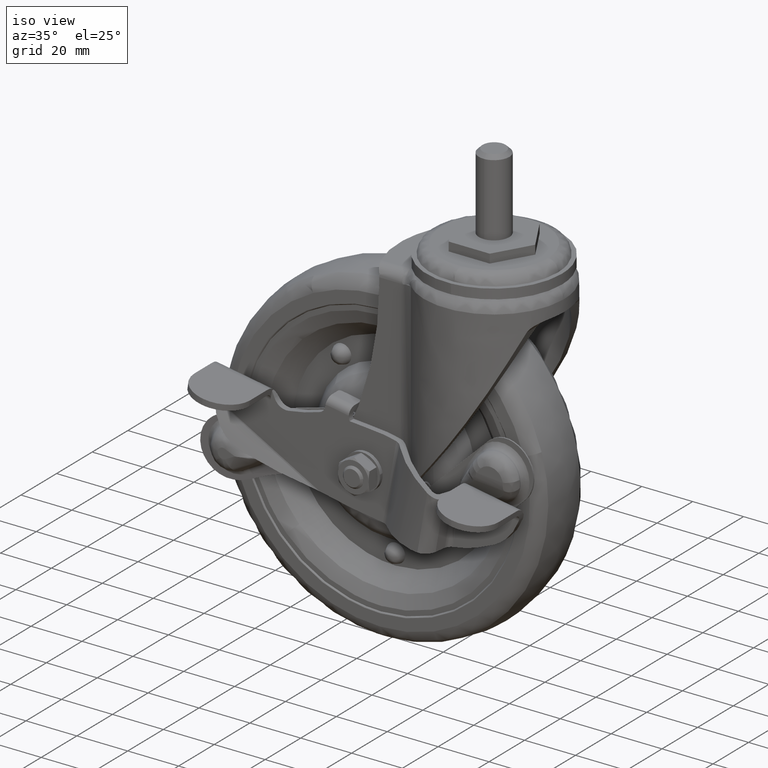
[diagram: clean part render]
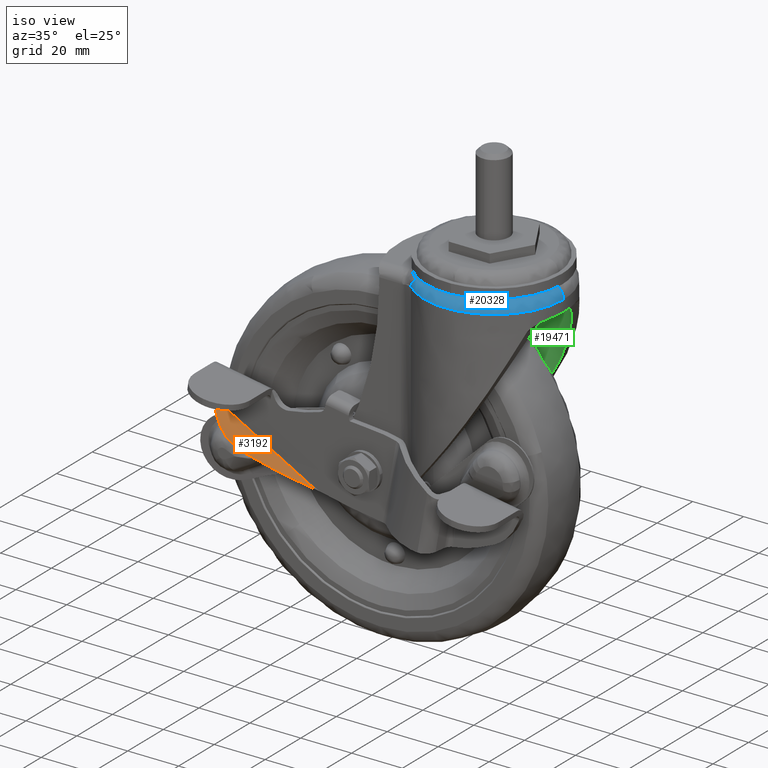
[diagram: same view with three faces highlighted in distinct colors, each labeled with its STEP entity id]
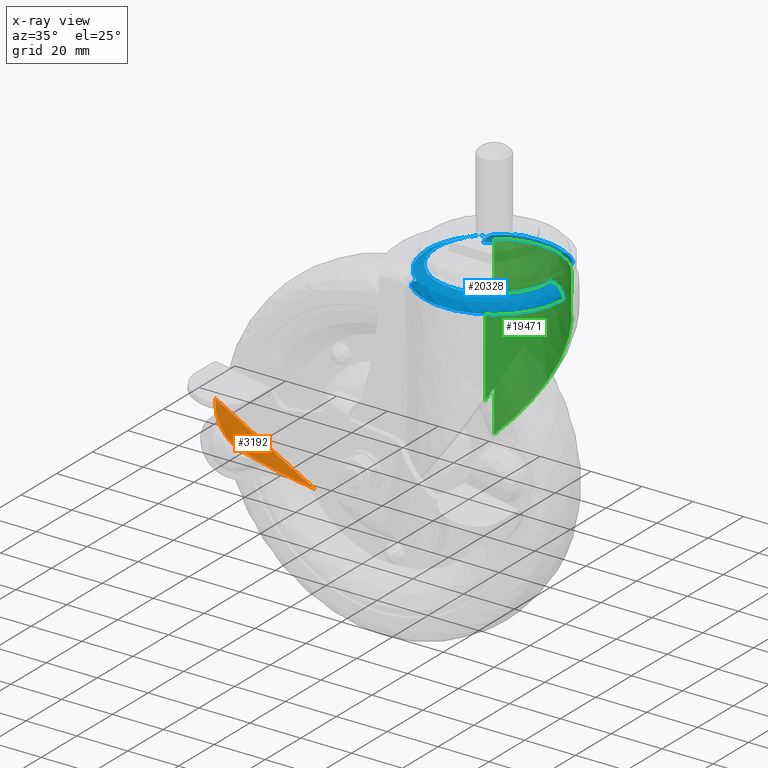
[diagram: x-ray of the same camera — body ghosted, the three highlighted faces saturated]
A machine part, iso view with three faces highlighted in distinct colors.
The next image is the same camera in x-ray (body ghosted, the three faces saturated) — at least one of them is partly hidden behind the body in this view.
Their STEP definitions:

[orange] entity #3192 — the highlighted face is a freeform B-spline surface patch.
#1250=CARTESIAN_POINT('',(-55.390257170647203,-21.287599056337900,-96.914940896990998));
#1251=VERTEX_POINT('',#1250);
#1276=CARTESIAN_POINT('',(-94.785634736347106,-21.287599056338049,-75.102106616562295));
#1277=VERTEX_POINT('',#1276);
#1287=CARTESIAN_POINT('',(-55.390257170647203,-21.287599056337900,-96.914940896990998));
#1288=CARTESIAN_POINT('',(-74.976657489770787,-21.287599056370048,-85.807529654345686));
#1289=CARTESIAN_POINT('',(-94.785634736347106,-21.287599056338049,-75.102106616562295));
#1297=(BOUNDED_CURVE()B_SPLINE_CURVE(2,(#1287,#1288,#1289),.UNSPECIFIED.,.F.,.U.)CURVE()GEOMETRIC_REPRESENTATION_ITEM()QUASI_UNIFORM_CURVE()RATIONAL_B_SPLINE_CURVE((1.0,0.999947943834097,1.0))REPRESENTATION_ITEM(''));
#1298=EDGE_CURVE('',#1251,#1277,#1297,.T.);
#2579=CARTESIAN_POINT('',(-81.765373163265195,-24.486802558095000,-89.397686657626494));
#2580=VERTEX_POINT('',#2579);
#2581=CARTESIAN_POINT('',(-81.765373163265195,-24.486802558095000,-89.397686657626494));
#2582=CARTESIAN_POINT('',(-79.582958510828618,-24.306972020824361,-90.139152115354520));
#2583=CARTESIAN_POINT('',(-77.396079506504506,-24.108737278590390,-90.851547409920883));
#2584=CARTESIAN_POINT('',(-73.014203864726028,-23.671042005054311,-92.218711073236321));
#2585=CARTESIAN_POINT('',(-70.819206580186062,-23.431584815675912,-92.873478920368413));
#2586=CARTESIAN_POINT('',(-66.422021251219988,-22.906144585756969,-94.125819586545532));
#2587=CARTESIAN_POINT('',(-64.219832320773094,-22.620166438663659,-94.723391886438975));
#2588=CARTESIAN_POINT('',(-59.809330033453953,-21.995375363423030,-95.861708464142652));
#2589=CARTESIAN_POINT('',(-57.601015450556183,-21.656569489349309,-96.402452197317402));
#2590=CARTESIAN_POINT('',(-55.390257170647203,-21.287599056337900,-96.914940896990998));
#2591=B_SPLINE_CURVE_WITH_KNOTS('',3,(#2581,#2582,#2583,#2584,#2585,#2586,#2587,#2588,#2589,#2590),.UNSPECIFIED.,.F.,.U.,(4,2,2,2,4),(0.0,0.250000000000000,0.500000000000000,0.750000000000000,1.0),.UNSPECIFIED.);
#2592=EDGE_CURVE('',#2580,#1251,#2591,.T.);
#2798=CARTESIAN_POINT('',(-94.785634736347106,-21.287599056338049,-75.102106616562295));
#2799=CARTESIAN_POINT('',(-94.602717943949116,-21.623812770014450,-75.868794635654453));
#2800=CARTESIAN_POINT('',(-94.373360255989624,-21.933202948279540,-76.629939720594692));
#2801=CARTESIAN_POINT('',(-93.816974462597926,-22.502423264476722,-78.137888934616726));
#2802=CARTESIAN_POINT('',(-93.489995067832098,-22.762261393919321,-78.884706765426714));
#2803=CARTESIAN_POINT('',(-93.014803317256906,-23.057546969240072,-79.806819079539153));
#2804=CARTESIAN_POINT('',(-92.916429544868123,-23.115123739031489,-79.990668737558465));
#2805=CARTESIAN_POINT('',(-92.763722956540121,-23.199280469939481,-80.265529940500755));
#2806=CARTESIAN_POINT('',(-92.711983653772151,-23.226950982170351,-80.356956352022692));
#2807=CARTESIAN_POINT('',(-92.607225641633136,-23.281328084033358,-80.538715633973254));
#2808=CARTESIAN_POINT('',(-92.341865653499667,-23.415006284786060,-80.990858071196513));
#2809=CARTESIAN_POINT('',(-92.059260844607465,-23.537582176229101,-81.431734439363439));
#2810=CARTESIAN_POINT('',(-91.348093673822603,-23.811723195215329,-82.468065207988076));
#2811=CARTESIAN_POINT('',(-90.830221631088264,-23.967869938384361,-83.129999238585214));
#2812=CARTESIAN_POINT('',(-89.986348646955193,-24.165253329487012,-84.077605584641589));
#2813=CARTESIAN_POINT('',(-89.693849551953534,-24.224881425653528,-84.385906933091192));
#2814=CARTESIAN_POINT('',(-89.237803355999731,-24.305209475635358,-84.836586043528968));
#2815=CARTESIAN_POINT('',(-89.082902720339078,-24.330464693318969,-84.984848820521421));
#2816=CARTESIAN_POINT('',(-88.767219983133415,-24.377933625583371,-85.277357961947857));
#2817=CARTESIAN_POINT('',(-88.606104906427817,-24.400185426597300,-85.421883679578173));
#2818=CARTESIAN_POINT('',(-87.791415037919521,-24.503092551834559,-86.129168813230791));
#2819=CARTESIAN_POINT('',(-87.108654258982398,-24.559312649979301,-86.648240095291953));
#2820=CARTESIAN_POINT('',(-85.682721389900010,-24.623170519937599,-87.595161017178242));
#2821=CARTESIAN_POINT('',(-84.939549689503394,-24.630803455600660,-88.023011540265529));
#2822=CARTESIAN_POINT('',(-83.971900602396687,-24.609423026841359,-88.499400027764338));
#2823=CARTESIAN_POINT('',(-83.776428800273266,-24.603589742490179,-88.591745050953136));
#2824=CARTESIAN_POINT('',(-83.381545728735858,-24.588748943025241,-88.770486816507670));
#2825=CARTESIAN_POINT('',(-83.182128436213716,-24.579735845167018,-88.856872660402189));
#2826=CARTESIAN_POINT('',(-82.581070166846970,-24.548016188056071,-89.105704540889590));
#2827=CARTESIAN_POINT('',(-82.175595239671225,-24.520604776347220,-89.258315571883060));
#2828=CARTESIAN_POINT('',(-81.765373163265195,-24.486802558095000,-89.397686657626494));
#2829=B_SPLINE_CURVE_WITH_KNOTS('',3,(#2798,#2799,#2800,#2801,#2802,#2803,#2804,#2805,#2806,#2807,#2808,#2809,#2810,#2811,#2812,#2813,#2814,#2815,#2816,#2817,#2818,#2819,#2820,#2821,#2822,#2823,#2824,#2825,#2826,#2827,#2828),.UNSPECIFIED.,.F.,.U.,(4,2,2,2,2,1,2,2,2,2,2,2,2,2,2,4),(0.0,0.125000000000019,0.250000000000037,0.281250000000040,0.296875000000040,0.312500000000041,0.375000000000040,0.500000000000037,0.562500000000034,0.593750000000032,0.625000000000030,0.750000000000021,0.875000000000012,0.906250000000009,0.937500000000006,1.0),.UNSPECIFIED.);
#2830=EDGE_CURVE('',#1277,#2580,#2829,.T.);
#3170=CARTESIAN_POINT('',(-53.275715559173555,-21.102930857863885,-97.746694456337735));
#3171=CARTESIAN_POINT('',(-74.809580383534424,-21.102930857863885,-85.505853498402928));
#3172=CARTESIAN_POINT('',(-96.612753485181329,-21.102930857863885,-73.751400540867223));
#3173=CARTESIAN_POINT('',(-55.021064997887919,-23.148877515643218,-100.817081451292220));
#3174=CARTESIAN_POINT('',(-76.520469705397318,-23.148877515643214,-88.595829211556051));
#3175=CARTESIAN_POINT('',(-98.288751722747733,-23.148877515643211,-76.860186617405873));
#3176=CARTESIAN_POINT('',(-56.872095381197539,-24.770488470817956,-104.073380442264410));
#3177=CARTESIAN_POINT('',(-78.334953411067715,-24.770488470817966,-91.872903018018704));
#3178=CARTESIAN_POINT('',(-100.066231688246210,-24.770488470817966,-80.157209755145985));
#3186=(BOUNDED_SURFACE()B_SPLINE_SURFACE(2,2,((#3170,#3173,#3176),(#3171,#3174,#3177),(#3172,#3175,#3178)),.UNSPECIFIED.,.F.,.F.,.U.)B_SPLINE_SURFACE_WITH_KNOTS((3,3),(3,3),(11.256480624771120,60.830265591049198),(1.852013262391090,10.008276788115500),.UNSPECIFIED.)GEOMETRIC_REPRESENTATION_ITEM()RATIONAL_B_SPLINE_SURFACE(((0.942678607023300,0.941029256464514,0.942576581727601),(0.942636516665965,0.940987239750258,0.942534495925669),(0.942713161374647,0.941063750358099,0.942611132339159)))REPRESENTATION_ITEM('')SURFACE());
#3187=ORIENTED_EDGE('',*,*,#2592,.T.);
#3188=ORIENTED_EDGE('',*,*,#1298,.T.);
#3189=ORIENTED_EDGE('',*,*,#2830,.T.);
#3190=EDGE_LOOP('',(#3187,#3188,#3189));
#3191=FACE_OUTER_BOUND('',#3190,.T.);
#3192=ADVANCED_FACE('',(#3191),#3186,.T.);

[blue] entity #20328 — the highlighted face is a freeform B-spline surface patch.
#20114=CARTESIAN_POINT('',(14.764703633214774,23.185943986384601,-15.662674566640387));
#20115=CARTESIAN_POINT('',(8.166838625271861,27.387434402795506,-15.662674566640399));
#20116=CARTESIAN_POINT('',(0.345414007824911,27.485726497213562,-15.662674566640398));
#20117=CARTESIAN_POINT('',(-27.140312489388652,27.831140505038476,-15.662674566640403));
#20118=CARTESIAN_POINT('',(-27.485726497213562,0.345414007824913,-15.662674566640398));
#20119=CARTESIAN_POINT('',(-27.831140505038476,-27.140312489388652,-15.662674566640403));
#20120=CARTESIAN_POINT('',(-0.345414007824914,-27.485726497213562,-15.662674566640398));
#20121=CARTESIAN_POINT('',(27.140312489388652,-27.831140505038476,-15.662674566640403));
#20122=CARTESIAN_POINT('',(27.485726497213562,-0.345414007824916,-15.662674566640398));
#20123=CARTESIAN_POINT('',(14.979444158363409,23.523164557239987,-9.927302613869617));
#20124=CARTESIAN_POINT('',(8.285618606147999,27.785762211617900,-9.927302613869623));
#20125=CARTESIAN_POINT('',(0.350437771747077,27.885483884068648,-9.927302613869623));
#20126=CARTESIAN_POINT('',(-27.535046112321574,28.235921655815719,-9.927302613869623));
#20127=CARTESIAN_POINT('',(-27.885483884068648,0.350437771747079,-9.927302613869623));
#20128=CARTESIAN_POINT('',(-28.235921655815719,-27.535046112321574,-9.927302613869623));
#20129=CARTESIAN_POINT('',(-0.350437771747081,-27.885483884068648,-9.927302613869623));
#20130=CARTESIAN_POINT('',(27.535046112321549,-28.235921655815719,-9.927302613869623));
#20131=CARTESIAN_POINT('',(27.885483884068648,-0.350437771747082,-9.927302613869623));
#20132=CARTESIAN_POINT('',(11.898776802135627,18.685398589388402,-10.327092213219437));
#20133=CARTESIAN_POINT('',(6.581601120835479,22.071351869799781,-10.327092213219437));
#20134=CARTESIAN_POINT('',(0.278366859609281,22.150564817241793,-10.327092213219437));
#20135=CARTESIAN_POINT('',(-21.872197957632505,22.428931676851072,-10.327092213219439));
#20136=CARTESIAN_POINT('',(-22.150564817241793,0.278366859609283,-10.327092213219437));
#20137=CARTESIAN_POINT('',(-22.428931676851072,-21.872197957632505,-10.327092213219439));
#20138=CARTESIAN_POINT('',(-0.278366859609284,-22.150564817241793,-10.327092213219437));
#20139=CARTESIAN_POINT('',(21.872197957632505,-22.428931676851072,-10.327092213219439));
#20140=CARTESIAN_POINT('',(22.150564817241793,-0.278366859609286,-10.327092213219437));
#20148=(BOUNDED_SURFACE()B_SPLINE_SURFACE(2,2,((#20114,#20123,#20132),(#20115,#20124,#20133),(#20116,#20125,#20134),(#20117,#20126,#20135),(#20118,#20127,#20136),(#20119,#20128,#20137),(#20120,#20129,#20138),(#20121,#20130,#20139),(#20122,#20131,#20140)),.UNSPECIFIED.,.F.,.F.,.U.)B_SPLINE_SURFACE_WITH_KNOTS((3,2,2,2,3),(3,3),(0.0,16.395633141974741,61.939071807729157,107.482510473483600,153.025949139238010),(0.0,9.111870290046086),.UNSPECIFIED.)GEOMETRIC_REPRESENTATION_ITEM()RATIONAL_B_SPLINE_SURFACE(((0.787596728976401,0.516840619236521,0.787596769444847),(0.814477415808364,0.534480396443050,0.814477457657998),(0.910479796843584,0.597479553545834,0.910479843626031),(0.643806438481448,0.422481843932570,0.643806471561634),(0.910479796843584,0.597479553545834,0.910479843626031),(0.643806438481448,0.422481843932570,0.643806471561634),(0.910479796843584,0.597479553545834,0.910479843626031),(0.643806438481448,0.422481843932570,0.643806471561634),(0.910479796843584,0.597479553545834,0.910479843626031)))REPRESENTATION_ITEM('')SURFACE());
#20149=CARTESIAN_POINT('',(-18.434040863337351,20.406766952381449,-15.314989000000050));
#20150=VERTEX_POINT('',#20149);
#20151=CARTESIAN_POINT('',(14.771208646367899,23.196150437636540,-15.314988998504401));
#20152=VERTEX_POINT('',#20151);
#20153=CARTESIAN_POINT('',(-18.434040863337380,20.406766952381449,-15.314989000000050));
#20154=CARTESIAN_POINT('',(-2.893525941386623,34.444977305693364,-15.314989000000054));
#20155=CARTESIAN_POINT('',(14.771208646367894,23.196150437636540,-15.314988998504401));
#20163=(BOUNDED_CURVE()B_SPLINE_CURVE(2,(#20153,#20154,#20155),.UNSPECIFIED.,.F.,.U.)B_SPLINE_CURVE_WITH_KNOTS((3,3),(0.0,0.279238944093415),.UNSPECIFIED.)CURVE()GEOMETRIC_REPRESENTATION_ITEM()RATIONAL_B_SPLINE_CURVE((1.0,0.764573170260862,0.923588376607426))REPRESENTATION_ITEM(''));
#20164=EDGE_CURVE('',#20150,#20152,#20163,.T.);
#20165=ORIENTED_EDGE('',*,*,#20164,.F.);
#20166=CARTESIAN_POINT('',(-15.407647695972900,21.359650559663649,-12.108980114701060));
#20167=VERTEX_POINT('',#20166);
#20168=CARTESIAN_POINT('',(-18.434040863337401,20.406766952381449,-15.314989000000050));
#20169=CARTESIAN_POINT('',(-18.434040863337412,20.406766952381449,-15.213879970501271));
#20170=CARTESIAN_POINT('',(-18.426934625406830,20.409061428186849,-15.113678538708889));
#20171=CARTESIAN_POINT('',(-18.406066564486771,20.415797377839660,-14.964680157344620));
#20172=CARTESIAN_POINT('',(-18.397406551753630,20.418592514131131,-14.915231647736309));
#20173=CARTESIAN_POINT('',(-18.376725563338219,20.425266424420350,-14.816763827396560));
#20174=CARTESIAN_POINT('',(-18.364694205452469,20.429148539876220,-14.767768189873671));
#20175=CARTESIAN_POINT('',(-18.297330263543280,20.450879777916128,-14.527243223120180));
#20176=CARTESIAN_POINT('',(-18.220083514779589,20.475787556039201,-14.346056817903539));
#20177=CARTESIAN_POINT('',(-18.076267339801969,20.522069221641910,-14.087707275284140));
#20178=CARTESIAN_POINT('',(-18.023394324672768,20.539071557185729,-14.003548480356820));
#20179=CARTESIAN_POINT('',(-17.910294433430110,20.575399216055200,-13.841218384913351));
#20180=CARTESIAN_POINT('',(-17.850055074331159,20.594728634441321,-13.762951218807750));
#20181=CARTESIAN_POINT('',(-17.660092035507361,20.655598668444021,-13.536356446649380));
#20182=CARTESIAN_POINT('',(-17.523696100044550,20.699196929815798,-13.398942111650721));
#20183=CARTESIAN_POINT('',(-17.236745449508842,20.790569321491070,-13.143843292941680));
#20184=CARTESIAN_POINT('',(-17.086129224748579,20.838363321702850,-13.026245218247810));
#20185=CARTESIAN_POINT('',(-16.773677213425788,20.937025768352900,-12.806588632209950));
#20186=CARTESIAN_POINT('',(-16.611817699237221,20.987901840225611,-12.704563437601610));
#20187=CARTESIAN_POINT('',(-16.362056064418649,21.065927867221038,-12.561102551049039));
#20188=CARTESIAN_POINT('',(-16.277547596426420,21.092250393160619,-12.514845075302830));
#20189=CARTESIAN_POINT('',(-16.107107670315791,21.145161441376569,-12.425637825233100));
#20190=CARTESIAN_POINT('',(-16.021169672233189,21.171752285150522,-12.382677029781849));
#20191=CARTESIAN_POINT('',(-15.761400159112140,21.251837496816790,-12.258231671629771));
#20192=CARTESIAN_POINT('',(-15.585621077401550,21.305642133604760,-12.181165336487160));
#20193=CARTESIAN_POINT('',(-15.407647695972900,21.359650559663649,-12.108980114701060));
#20194=B_SPLINE_CURVE_WITH_KNOTS('',3,(#20168,#20169,#20170,#20171,#20172,#20173,#20174,#20175,#20176,#20177,#20178,#20179,#20180,#20181,#20182,#20183,#20184,#20185,#20186,#20187,#20188,#20189,#20190,#20191,#20192,#20193),.UNSPECIFIED.,.F.,.U.,(4,2,2,2,2,2,2,2,2,2,2,2,4),(0.0,0.062499999999998,0.093749999999997,0.124999999999996,0.249999999999995,0.312499999999995,0.374999999999994,0.499999999999996,0.624999999999997,0.749999999999998,0.812499999999998,0.874999999999998,1.0),.UNSPECIFIED.);
#20195=EDGE_CURVE('',#20150,#20167,#20194,.T.);
#20196=ORIENTED_EDGE('',*,*,#20195,.T.);
#20197=CARTESIAN_POINT('',(-15.407647695972900,-21.359650559663649,-12.108980114701060));
#20198=VERTEX_POINT('',#20197);
#20199=CARTESIAN_POINT('',(-15.407647695972891,21.359650559663649,-12.108980114701060));
#20200=CARTESIAN_POINT('',(-26.336861611706105,13.475931809810028,-12.108980114701062));
#20201=CARTESIAN_POINT('',(-26.336861611706102,0.0,-12.108980114701060));
#20202=CARTESIAN_POINT('',(-26.336861611706105,-13.475931809810028,-12.108980114701062));
#20203=CARTESIAN_POINT('',(-15.407647695972900,-21.359650559663649,-12.108980114701060));
#20211=(BOUNDED_CURVE()B_SPLINE_CURVE(2,(#20199,#20200,#20201,#20202,#20203),.UNSPECIFIED.,.F.,.U.)B_SPLINE_CURVE_WITH_KNOTS((3,2,3),(0.0,0.500000000000000,1.0),.UNSPECIFIED.)CURVE()GEOMETRIC_REPRESENTATION_ITEM()RATIONAL_B_SPLINE_CURVE((1.0,0.890230914165942,1.0,0.890230914165942,1.0))REPRESENTATION_ITEM(''));
#20212=EDGE_CURVE('',#20167,#20198,#20211,.T.);
#20213=ORIENTED_EDGE('',*,*,#20212,.T.);
#20214=CARTESIAN_POINT('',(-18.434040863337351,-20.406766952381449,-15.314989000000050));
#20215=VERTEX_POINT('',#20214);
#20216=CARTESIAN_POINT('',(-15.407647695972900,-21.359650559663649,-12.108980114701041));
#20217=CARTESIAN_POINT('',(-15.585696180352070,-21.305619342600188,-12.181195797913990));
#20218=CARTESIAN_POINT('',(-15.761517532398321,-21.251801494581951,-12.258284502936590));
#20219=CARTESIAN_POINT('',(-16.107888164006209,-21.145017368104231,-12.424223848968159));
#20220=CARTESIAN_POINT('',(-16.278703426516191,-21.091967776606971,-12.513214369565050));
#20221=CARTESIAN_POINT('',(-16.612527042793829,-20.987679858184858,-12.704982058035149));
#20222=CARTESIAN_POINT('',(-16.775404292347801,-20.936483772081040,-12.807632832021270));
#20223=CARTESIAN_POINT('',(-17.012193646060670,-20.861708100649260,-12.974355556089479));
#20224=CARTESIAN_POINT('',(-17.090033074444221,-20.837067072144240,-13.032205455339490));
#20225=CARTESIAN_POINT('',(-17.241716128845582,-20.788950537442020,-13.151865167045370));
#20226=CARTESIAN_POINT('',(-17.315604889392610,-20.765461078851281,-13.213689684151900));
#20227=CARTESIAN_POINT('',(-17.530785139050732,-20.696933969796131,-13.405803935511861));
#20228=CARTESIAN_POINT('',(-17.665676113400639,-20.653810904807521,-13.542646489208520));
#20229=CARTESIAN_POINT('',(-17.851503884059952,-20.594263590354451,-13.764871248849390));
#20230=CARTESIAN_POINT('',(-17.910677595556841,-20.575276090846099,-13.841790888248640));
#20231=CARTESIAN_POINT('',(-17.994574713993231,-20.548328436102882,-13.962173040251811));
#20232=CARTESIAN_POINT('',(-18.021727587996320,-20.539602198891298,-14.003136529410639));
#20233=CARTESIAN_POINT('',(-18.074254567488961,-20.522713613389278,-14.086894095641140));
#20234=CARTESIAN_POINT('',(-18.099646974980381,-20.514545350721150,-14.129740469746960));
#20235=CARTESIAN_POINT('',(-18.220176825956809,-20.475757689078961,-14.346088775085621));
#20236=CARTESIAN_POINT('',(-18.297586748179050,-20.450797076979271,-14.527885795901369));
#20237=CARTESIAN_POINT('',(-18.364918524366331,-20.429076165819289,-14.768638163140711));
#20238=CARTESIAN_POINT('',(-18.376924050959438,-20.425202376039341,-14.817625250396370));
#20239=CARTESIAN_POINT('',(-18.397526562503291,-20.418553780616801,-14.915887984077751));
#20240=CARTESIAN_POINT('',(-18.406155788256889,-20.415768578902242,-14.965239747885059));
#20241=CARTESIAN_POINT('',(-18.426953042104099,-20.409055480722309,-15.113966076644660));
#20242=CARTESIAN_POINT('',(-18.434040863337351,-20.406766952381449,-15.214010338229629));
#20243=CARTESIAN_POINT('',(-18.434040863337351,-20.406766952381449,-15.314989000000050));
#20244=B_SPLINE_CURVE_WITH_KNOTS('',3,(#20216,#20217,#20218,#20219,#20220,#20221,#20222,#20223,#20224,#20225,#20226,#20227,#20228,#20229,#20230,#20231,#20232,#20233,#20234,#20235,#20236,#20237,#20238,#20239,#20240,#20241,#20242,#20243),.UNSPECIFIED.,.F.,.U.,(4,2,2,2,2,2,2,2,2,2,2,2,2,4),(0.0,0.124999999999999,0.249999999999998,0.374999999999997,0.437499999999997,0.499999999999997,0.624999999999995,0.687499999999995,0.718749999999996,0.749999999999997,0.874999999999998,0.906249999999999,0.937500000000000,1.0),.UNSPECIFIED.);
#20245=EDGE_CURVE('',#20198,#20215,#20244,.T.);
#20246=ORIENTED_EDGE('',*,*,#20245,.T.);
#20247=CARTESIAN_POINT('',(27.497828715604939,-0.345566096792196,-15.314988998566911));
#20248=VERTEX_POINT('',#20247);
#20249=CARTESIAN_POINT('',(27.497828715604946,-0.345566096792196,-15.314988998566911));
#20250=CARTESIAN_POINT('',(27.360622709721344,-11.263498392703902,-15.314989000000054));
#20251=CARTESIAN_POINT('',(19.771567708382339,-19.113741401223699,-15.314989000000050));
#20252=CARTESIAN_POINT('',(1.293765859722396,-38.227482802447369,-15.314989000000050));
#20253=CARTESIAN_POINT('',(-18.434040863337369,-20.406766952381449,-15.314989000000050));
#20261=(BOUNDED_CURVE()B_SPLINE_CURVE(2,(#20249,#20250,#20251,#20252,#20253),.UNSPECIFIED.,.F.,.U.)B_SPLINE_CURVE_WITH_KNOTS((3,2,3),(0.502589933616115,0.666666666666667,1.0),.UNSPECIFIED.)CURVE()GEOMETRIC_REPRESENTATION_ITEM()RATIONAL_B_SPLINE_CURVE((0.859516981167106,0.861666626689707,1.0,0.718966098486631,1.0))REPRESENTATION_ITEM(''));
#20262=EDGE_CURVE('',#20248,#20215,#20261,.T.);
#20263=ORIENTED_EDGE('',*,*,#20262,.F.);
#20264=CARTESIAN_POINT('',(22.498223500750949,-0.282735898134310,-10.314989000000070));
#20265=VERTEX_POINT('',#20264);
#20266=CARTESIAN_POINT('',(27.497828715604943,-0.345566096792196,-15.314988998566905));
#20267=CARTESIAN_POINT('',(27.497828712738876,-0.345566096756181,-10.314989012348333));
#20268=CARTESIAN_POINT('',(22.498223500750953,-0.282735898134310,-10.314989000000063));
#20276=(BOUNDED_CURVE()B_SPLINE_CURVE(2,(#20266,#20267,#20268),.UNSPECIFIED.,.F.,.U.)B_SPLINE_CURVE_WITH_KNOTS((3,3),(-1.725134642693941,-0.274865359250806),.UNSPECIFIED.)CURVE()GEOMETRIC_REPRESENTATION_ITEM()RATIONAL_B_SPLINE_CURVE((0.883342149443309,0.624617224684270,0.883342148749431))REPRESENTATION_ITEM(''));
#20277=EDGE_CURVE('',#20248,#20265,#20276,.T.);
#20278=ORIENTED_EDGE('',*,*,#20277,.T.);
#20279=CARTESIAN_POINT('',(-22.500000000000000,0.0,-10.314989000000081));
#20280=VERTEX_POINT('',#20279);
#20281=CARTESIAN_POINT('',(-22.500000000000000,0.0,-10.314989000000081));
#20282=CARTESIAN_POINT('',(-22.500000000000000,-22.500000000000000,-10.314989000000081));
#20283=CARTESIAN_POINT('',(0.0,-22.500000000000000,-10.314989000000081));
#20284=CARTESIAN_POINT('',(22.219018421568759,-22.499999999999989,-10.314989000000081));
#20285=CARTESIAN_POINT('',(22.498223500750957,-0.282735898134310,-10.314989000000063));
#20293=(BOUNDED_CURVE()B_SPLINE_CURVE(2,(#20281,#20282,#20283,#20284,#20285),.UNSPECIFIED.,.F.,.U.)B_SPLINE_CURVE_WITH_KNOTS((3,2,3),(0.500000000000000,0.750000000000000,0.997784295911077),.UNSPECIFIED.)CURVE()GEOMETRIC_REPRESENTATION_ITEM()RATIONAL_B_SPLINE_CURVE((1.0,0.707106781186548,1.0,0.709702639996719,0.994854295619497))REPRESENTATION_ITEM(''));
#20294=EDGE_CURVE('',#20280,#20265,#20293,.T.);
#20295=ORIENTED_EDGE('',*,*,#20294,.F.);
#20296=CARTESIAN_POINT('',(12.085534351397440,18.978668546290042,-10.314989000000070));
#20297=VERTEX_POINT('',#20296);
#20298=CARTESIAN_POINT('',(12.085534351397435,18.978668546290038,-10.314989000000066));
#20299=CARTESIAN_POINT('',(6.555767877592841,22.500000000000000,-10.314989000000081));
#20300=CARTESIAN_POINT('',(0.0,22.500000000000000,-10.314989000000081));
#20301=CARTESIAN_POINT('',(-22.500000000000000,22.500000000000000,-10.314989000000081));
#20302=CARTESIAN_POINT('',(-22.500000000000000,0.0,-10.314989000000081));
#20310=(BOUNDED_CURVE()B_SPLINE_CURVE(2,(#20298,#20299,#20300,#20301,#20302),.UNSPECIFIED.,.F.,.U.)B_SPLINE_CURVE_WITH_KNOTS((3,2,3),(0.158079749869238,0.250000000000000,0.500000000000000),.UNSPECIFIED.)CURVE()GEOMETRIC_REPRESENTATION_ITEM()RATIONAL_B_SPLINE_CURVE((0.863809525602246,0.892308728260254,1.0,0.707106781186548,1.0))REPRESENTATION_ITEM(''));
#20311=EDGE_CURVE('',#20297,#20280,#20310,.T.);
#20312=ORIENTED_EDGE('',*,*,#20311,.F.);
#20313=CARTESIAN_POINT('',(14.771208646367898,23.196150437636543,-15.314988998504409));
#20314=CARTESIAN_POINT('',(14.771208644763586,23.196150435111857,-10.314989015499901));
#20315=CARTESIAN_POINT('',(12.085534351397440,18.978668546290038,-10.314989000000065));
#20323=(BOUNDED_CURVE()B_SPLINE_CURVE(2,(#20313,#20314,#20315),.UNSPECIFIED.,.F.,.U.)B_SPLINE_CURVE_WITH_KNOTS((3,3),(-1.725134642668303,-0.274865359897190),.UNSPECIFIED.)CURVE()GEOMETRIC_REPRESENTATION_ITEM()RATIONAL_B_SPLINE_CURVE((0.764121703781564,0.540315639114919,0.764121702989749))REPRESENTATION_ITEM(''));
#20324=EDGE_CURVE('',#20152,#20297,#20323,.T.);
#20325=ORIENTED_EDGE('',*,*,#20324,.F.);
#20326=EDGE_LOOP('',(#20165,#20196,#20213,#20246,#20263,#20278,#20295,#20312,#20325));
#20327=FACE_OUTER_BOUND('',#20326,.T.);
#20328=ADVANCED_FACE('',(#20327),#20148,.T.);

[green] entity #19471 — the highlighted face is a freeform B-spline surface patch.
#19085=CARTESIAN_POINT('',(-14.263669605431460,20.409754834721220,-82.241723647606676));
#19086=VERTEX_POINT('',#19085);
#19096=CARTESIAN_POINT('',(-14.263683957683480,20.409735910961668,-12.914989000000110));
#19097=VERTEX_POINT('',#19096);
#19098=CARTESIAN_POINT('',(-14.263669605431460,20.409754834721220,-82.241723647606676));
#19099=CARTESIAN_POINT('',(-14.263683957683480,20.409735910961668,-12.914989000000110));
#19100=QUASI_UNIFORM_CURVE('',1,(#19098,#19099),.UNSPECIFIED.,.F.,.U.);
#19101=EDGE_CURVE('',#19086,#19097,#19100,.T.);
#19118=CARTESIAN_POINT('',(11.811690650548661,-21.920172535262079,-12.914989000000091));
#19119=VERTEX_POINT('',#19118);
#19135=CARTESIAN_POINT('',(11.811706921688909,-21.920185502390311,-47.213526866940413));
#19136=VERTEX_POINT('',#19135);
#19137=CARTESIAN_POINT('',(11.811706921688909,-21.920185502390311,-47.213526866940413));
#19138=CARTESIAN_POINT('',(11.811690650548661,-21.920172535262079,-12.914989000000091));
#19139=QUASI_UNIFORM_CURVE('',1,(#19137,#19138),.UNSPECIFIED.,.F.,.U.);
#19140=EDGE_CURVE('',#19136,#19119,#19139,.T.);
#19259=CARTESIAN_POINT('',(11.811698670678400,-21.920168213613088,-85.704592550639560));
#19260=CARTESIAN_POINT('',(33.731866884291499,-10.108469542934682,-85.704592550639560));
#19261=CARTESIAN_POINT('',(21.920168213613088,11.811698670678400,-85.704592550639560));
#19262=CARTESIAN_POINT('',(10.108469542934682,33.731866884291499,-85.704592550639560));
#19263=CARTESIAN_POINT('',(-11.811698670678400,21.920168213613088,-85.704592550639560));
#19264=CARTESIAN_POINT('',(-13.081441555655232,21.235966331564111,-85.704592550639546));
#19265=CARTESIAN_POINT('',(-14.263691176147619,20.409730866218883,-85.704592550639518));
#19266=CARTESIAN_POINT('',(11.811698670678400,-21.920168213613088,-11.075284191703521));
#19267=CARTESIAN_POINT('',(33.731866884291499,-10.108469542934682,-11.075284191703519));
#19268=CARTESIAN_POINT('',(21.920168213613088,11.811698670678400,-11.075284191703521));
#19269=CARTESIAN_POINT('',(10.108469542934682,33.731866884291499,-11.075284191703515));
#19270=CARTESIAN_POINT('',(-11.811698670678400,21.920168213613088,-11.075284191703521));
#19271=CARTESIAN_POINT('',(-13.081441555655232,21.235966331564111,-11.075284191703517));
#19272=CARTESIAN_POINT('',(-14.263691176147619,20.409730866218883,-11.075284191703512));
#19280=(BOUNDED_SURFACE()B_SPLINE_SURFACE(2,1,((#19259,#19266),(#19260,#19267),(#19261,#19268),(#19262,#19269),(#19263,#19270),(#19264,#19271),(#19265,#19272)),.UNSPECIFIED.,.F.,.F.,.U.)B_SPLINE_SURFACE_WITH_KNOTS((3,2,2,3),(2,2),(0.0,41.255670812360250,82.511341624720501,85.811792668146097),(0.0,74.629308358936058),.UNSPECIFIED.)GEOMETRIC_REPRESENTATION_ITEM()RATIONAL_B_SPLINE_SURFACE(((1.0,1.0),(0.707106781186548,0.707106781186548),(1.0,1.0),(0.707106781186548,0.707106781186548),(1.0,1.0),(0.976568561106622,0.976568561106622),(0.956886149458315,0.956886149458315)))REPRESENTATION_ITEM('')SURFACE());
#19281=CARTESIAN_POINT('',(23.210853167600149,9.014782040188461,-22.579567991240548));
#19282=VERTEX_POINT('',#19281);
#19283=CARTESIAN_POINT('',(-14.263669605431460,20.409754834721220,-82.241723647606676));
#19284=CARTESIAN_POINT('',(-13.812636991729869,20.724980448115250,-81.774108013115253));
#19285=CARTESIAN_POINT('',(-13.357370149563881,21.020890551577139,-81.296795277054841));
#19286=CARTESIAN_POINT('',(-12.562896577515939,21.502023814536258,-80.453901874801502));
#19287=CARTESIAN_POINT('',(-12.225329161267020,21.695616295167270,-80.092712116197575));
#19288=CARTESIAN_POINT('',(-11.716457734351479,21.972055805129671,-79.543403848337533));
#19289=CARTESIAN_POINT('',(-11.546413483894790,22.061876446784549,-79.359046823330203));
#19290=CARTESIAN_POINT('',(-11.205536290834459,22.236951071531649,-78.987834455059925));
#19291=CARTESIAN_POINT('',(-11.034548667617321,22.322276932395230,-78.800808093911456));
#19292=CARTESIAN_POINT('',(-10.180954796162830,22.736169000670881,-77.862968105482921));
#19293=CARTESIAN_POINT('',(-9.500689130649512,23.027595328445258,-77.102207238944672));
#19294=CARTESIAN_POINT('',(-8.146872997679486,23.540638074935650,-75.560468954659186));
#19295=CARTESIAN_POINT('',(-7.473318232106140,23.762222515113720,-74.779488406136664));
#19296=CARTESIAN_POINT('',(-6.134094414858248,24.142629208101528,-73.197815157355393));
#19297=CARTESIAN_POINT('',(-5.468422735839039,24.301432362567130,-72.397120637538251));
#19298=CARTESIAN_POINT('',(-4.145923650043986,24.561647910151539,-70.776348637061346));
#19299=CARTESIAN_POINT('',(-3.489094551442773,24.663048424186840,-69.956270072550311));
#19300=CARTESIAN_POINT('',(-2.185089567538443,24.812599691714158,-68.296925611394613));
#19301=CARTESIAN_POINT('',(-1.537912548347314,24.860742920027171,-67.457659079812530));
#19302=CARTESIAN_POINT('',(-0.735412303554984,24.889635857588701,-66.396638138504684));
#19303=CARTESIAN_POINT('',(-0.575344789054088,24.893842258127950,-66.183979913966297));
#19304=CARTESIAN_POINT('',(-0.256679615481284,24.899167025150359,-65.758565838162667));
#19305=CARTESIAN_POINT('',(0.219384332316039,24.902531491935260,-65.119940392627470));
#19306=CARTESIAN_POINT('',(0.689701442060677,24.892372715153162,-64.479781366905826));
#19307=CARTESIAN_POINT('',(1.622805243775848,24.854840785647468,-63.197371558957450));
#19308=CARTESIAN_POINT('',(2.234837637144973,24.806895194089599,-62.339640530471300));
#19309=CARTESIAN_POINT('',(3.439431234867084,24.668742857031049,-60.618404301262842));
#19310=CARTESIAN_POINT('',(4.031991629247115,24.578530165676408,-59.754899540908127));
#19311=CARTESIAN_POINT('',(5.781200909659074,24.248609092243619,-57.155533428460977));
#19312=CARTESIAN_POINT('',(6.909414279901126,23.949910561451411,-55.410796278883780));
#19313=CARTESIAN_POINT('',(9.092886231529068,23.209000631763999,-51.897277010665242));
#19314=CARTESIAN_POINT('',(10.148136607007521,22.766775723360251,-50.128491759619223));
#19315=CARTESIAN_POINT('',(11.422726722478560,22.127176106284040,-47.902744245274661));
#19316=CARTESIAN_POINT('',(11.675418741930750,21.994892223410051,-47.456858655455498));
#19317=CARTESIAN_POINT('',(12.051132078975110,21.789902691037138,-46.786938321080257));
#19318=CARTESIAN_POINT('',(12.175815714340180,21.720478573392970,-46.563449585333672));
#19319=CARTESIAN_POINT('',(12.424076743243500,21.579434808374820,-46.116110661407014));
#19320=CARTESIAN_POINT('',(12.547659946811221,21.507809964328040,-45.892248427539712));
#19321=CARTESIAN_POINT('',(13.161614927666060,21.144899361263619,-44.774240372897552));
#19322=CARTESIAN_POINT('',(13.641089699983381,20.838734851901780,-43.882236610766618));
#19323=CARTESIAN_POINT('',(14.577416085234340,20.194830753937151,-42.103339320513193));
#19324=CARTESIAN_POINT('',(15.034267507572091,19.857095019560230,-41.216443788666098));
#19325=CARTESIAN_POINT('',(15.925918982541390,19.149375416126190,-39.448364586664731));
#19326=CARTESIAN_POINT('',(16.360719414969559,18.779399056181020,-38.567177363804952));
#19327=CARTESIAN_POINT('',(17.208656197020328,18.005587290933001,-36.811496053328192));
#19328=CARTESIAN_POINT('',(17.621793751052561,17.601765381876451,-35.936995824286953));
#19329=CARTESIAN_POINT('',(18.426585035207889,16.757409610086341,-34.196189977876472));
#19330=CARTESIAN_POINT('',(18.818241394027780,16.316900160431960,-33.329873461792943));
#19331=CARTESIAN_POINT('',(19.579988905987960,15.394529134494849,-31.607702060001369));
#19332=CARTESIAN_POINT('',(19.950085531554269,14.912714028696589,-30.751826647588981));
#19333=CARTESIAN_POINT('',(20.668255960883211,13.900294941918270,-29.054017835023220));
#19334=CARTESIAN_POINT('',(21.016341755687780,13.369787566828220,-28.212042049903740));
#19335=CARTESIAN_POINT('',(21.521145300263541,12.528255316709931,-26.963717211496821));
#19336=CARTESIAN_POINT('',(21.686519836800279,12.240070787863580,-26.550068510706399));
#19337=CARTESIAN_POINT('',(21.930062978858668,11.794527996273620,-25.934073278279989));
#19338=CARTESIAN_POINT('',(22.010490265622661,11.643797649875580,-25.729490058312241));
#19339=CARTESIAN_POINT('',(22.169798034277719,11.337538194178761,-25.321984415560291));
#19340=CARTESIAN_POINT('',(22.248735753268129,11.181893116106760,-25.118913713501371));
#19341=CARTESIAN_POINT('',(22.482762646791969,10.707918447430201,-24.513502439207599));
#19342=CARTESIAN_POINT('',(22.634636027188460,10.383482645511270,-24.116075611979792));
#19343=CARTESIAN_POINT('',(22.929557074516140,9.714880025283893,-23.335966963477730));
#19344=CARTESIAN_POINT('',(23.072608405328371,9.370727848304110,-22.953273121586442));
#19345=CARTESIAN_POINT('',(23.210853167600149,9.014782040188461,-22.579567991240548));
#19346=B_SPLINE_CURVE_WITH_KNOTS('',3,(#19283,#19284,#19285,#19286,#19287,#19288,#19289,#19290,#19291,#19292,#19293,#19294,#19295,#19296,#19297,#19298,#19299,#19300,#19301,#19302,#19303,#19304,#19305,#19306,#19307,#19308,#19309,#19310,#19311,#19312,#19313,#19314,#19315,#19316,#19317,#19318,#19319,#19320,#19321,#19322,#19323,#19324,#19325,#19326,#19327,#19328,#19329,#19330,#19331,#19332,#19333,#19334,#19335,#19336,#19337,#19338,#19339,#19340,#19341,#19342,#19343,#19344,#19345),.UNSPECIFIED.,.F.,.U.,(4,2,2,2,2,2,2,2,2,2,2,1,2,2,2,2,2,2,2,2,2,2,2,2,2,2,2,2,2,2,2,4),(0.629946159326117,0.640625000000003,0.648437500000003,0.652343750000003,0.656250000000003,0.671875000000003,0.687500000000004,0.703125000000004,0.718750000000004,0.734375000000004,0.738281250000005,0.742187500000005,0.750000000000005,0.765625000000004,0.781250000000004,0.812500000000004,0.843750000000003,0.851562500000003,0.855468750000003,0.859375000000003,0.875000000000003,0.890625000000002,0.906250000000002,0.921875000000002,0.937500000000001,0.953125000000001,0.968750000000001,0.976562500000000,0.980468750000000,0.984375000000000,0.992187500000000,1.0),.UNSPECIFIED.);
#19347=EDGE_CURVE('',#19086,#19282,#19346,.T.);
#19348=ORIENTED_EDGE('',*,*,#19347,.T.);
#19349=CARTESIAN_POINT('',(23.210853167600149,-9.014782040188461,-22.579567991240548));
#19350=VERTEX_POINT('',#19349);
#19351=CARTESIAN_POINT('',(23.210853167600149,-9.014782040188461,-22.579567991240548));
#19352=CARTESIAN_POINT('',(23.267371187758609,-8.869261994663058,-22.450610015619301));
#19353=CARTESIAN_POINT('',(23.325303177321260,-8.716017302227510,-22.334508170100509));
#19354=CARTESIAN_POINT('',(23.441791314145490,-8.397686938123842,-22.121147327524952));
#19355=CARTESIAN_POINT('',(23.500366573942209,-8.232561584217688,-22.023961007819409));
#19356=CARTESIAN_POINT('',(23.587655626464890,-7.977504427087350,-21.889369423270971));
#19357=CARTESIAN_POINT('',(23.616660614530868,-7.891249069489965,-21.846385283510930));
#19358=CARTESIAN_POINT('',(23.674349622545190,-7.716452579272002,-21.763807243326230));
#19359=CARTESIAN_POINT('',(23.703003335954630,-7.627996214192505,-21.724262368050251));
#19360=CARTESIAN_POINT('',(23.787694464736500,-7.361410571649373,-21.611022094502189));
#19361=CARTESIAN_POINT('',(23.842676043897619,-7.181416346904116,-21.542374207267610));
#19362=CARTESIAN_POINT('',(24.002553324209870,-6.635601001098875,-21.352838679778451));
#19363=CARTESIAN_POINT('',(24.102354768912232,-6.263996617927679,-21.248155386688719));
#19364=CARTESIAN_POINT('',(24.286171277997351,-5.508452023181455,-21.068781076393741));
#19365=CARTESIAN_POINT('',(24.370206477767930,-5.124478305210195,-20.994230077728069));
#19366=CARTESIAN_POINT('',(24.483319338656798,-4.540526905410525,-20.899309935363171));
#19367=CARTESIAN_POINT('',(24.518794766666868,-4.344888018837215,-20.870583523139430));
#19368=CARTESIAN_POINT('',(24.584905251582750,-3.953704905131940,-20.818435226644151));
#19369=CARTESIAN_POINT('',(24.615598934876139,-3.757863510656156,-20.794965587932499));
#19370=CARTESIAN_POINT('',(24.700615711594999,-3.169634019518913,-20.731376353424960));
#19371=CARTESIAN_POINT('',(24.747877442723240,-2.776543291303188,-20.698018519504348));
#19372=CARTESIAN_POINT('',(24.823616318602468,-1.988643616977148,-20.645803998029869));
#19373=CARTESIAN_POINT('',(24.852094075499679,-1.593833977387641,-20.626964151949700));
#19374=CARTESIAN_POINT('',(24.890214199990609,-0.802573213823791,-20.601944802923420));
#19375=CARTESIAN_POINT('',(24.899857138244549,-0.406121876081402,-20.595771003697710));
#19376=CARTESIAN_POINT('',(24.900139712263819,0.388410598416045,-20.595588604256481));
#19377=CARTESIAN_POINT('',(24.890780046498062,0.786491603642302,-20.601577902244721));
#19378=CARTESIAN_POINT('',(24.862260493776919,1.384874806982645,-20.620289501427411));
#19379=CARTESIAN_POINT('',(24.850334365766692,1.584617703530022,-20.628161797391940));
#19380=CARTESIAN_POINT('',(24.821621782450269,1.984243796950433,-20.647392541607761));
#19381=CARTESIAN_POINT('',(24.804886061191141,2.183443000075313,-20.658717091818438));
#19382=CARTESIAN_POINT('',(24.747634724772631,2.779165144830034,-20.698185012339930));
#19383=CARTESIAN_POINT('',(24.700075616985281,3.173820299190654,-20.731766191370980));
#19384=CARTESIAN_POINT('',(24.586637364657939,3.957794066794162,-20.816641990708600));
#19385=CARTESIAN_POINT('',(24.520755182376650,4.347116095162934,-20.867907465331790));
#19386=CARTESIAN_POINT('',(24.371142395063881,5.119792126482915,-20.993432435487250));
#19387=CARTESIAN_POINT('',(24.287406076906329,5.503154836454804,-21.067620074044839));
#19388=CARTESIAN_POINT('',(24.148870272978950,6.072912506653561,-21.202742300270980));
#19389=CARTESIAN_POINT('',(24.100462164811180,6.262203518066307,-21.251877783979570));
#19390=CARTESIAN_POINT('',(24.000191686361241,6.636133548768722,-21.359053344536552));
#19391=CARTESIAN_POINT('',(23.948271209873891,6.821033949224076,-21.417137564988391));
#19392=CARTESIAN_POINT('',(23.841243700925968,7.186187923454250,-21.544126374383548));
#19393=CARTESIAN_POINT('',(23.786134690506941,7.366445156247891,-21.613018664242929));
#19394=CARTESIAN_POINT('',(23.701456756626278,7.632799424360051,-21.726376653743831));
#19395=CARTESIAN_POINT('',(23.672856245675870,7.721028325262790,-21.765898932594581));
#19396=CARTESIAN_POINT('',(23.615372458540591,7.895098788004375,-21.848277455776021));
#19397=CARTESIAN_POINT('',(23.586469808534488,7.981005855741849,-21.891155433481892));
#19398=CARTESIAN_POINT('',(23.499484175778939,8.235064873180525,-22.025408828935671));
#19399=CARTESIAN_POINT('',(23.441106549377022,8.399586844606949,-22.122343349797521));
#19400=CARTESIAN_POINT('',(23.324986764407718,8.716853093837575,-22.335146418796359));
#19401=CARTESIAN_POINT('',(23.267225631126930,8.869636767321723,-22.450942135249321));
#19402=CARTESIAN_POINT('',(23.210853167600149,9.014782040188461,-22.579567991240548));
#19403=B_SPLINE_CURVE_WITH_KNOTS('',3,(#19351,#19352,#19353,#19354,#19355,#19356,#19357,#19358,#19359,#19360,#19361,#19362,#19363,#19364,#19365,#19366,#19367,#19368,#19369,#19370,#19371,#19372,#19373,#19374,#19375,#19376,#19377,#19378,#19379,#19380,#19381,#19382,#19383,#19384,#19385,#19386,#19387,#19388,#19389,#19390,#19391,#19392,#19393,#19394,#19395,#19396,#19397,#19398,#19399,#19400,#19401,#19402),.UNSPECIFIED.,.F.,.U.,(4,2,2,2,2,2,2,2,2,2,2,2,2,2,2,2,2,2,2,2,2,2,2,2,2,4),(0.0,0.031250000000001,0.062500000000001,0.078125000000002,0.093750000000002,0.125000000000002,0.187500000000001,0.250000000000001,0.281250000000001,0.312500000000001,0.375000000000001,0.437500000000001,0.500000000000001,0.562500000000000,0.593750000000000,0.625000000000000,0.687500000000000,0.749999999999999,0.812499999999999,0.843749999999999,0.874999999999999,0.906249999999999,0.921874999999999,0.937499999999999,0.968749999999999,1.0),.UNSPECIFIED.);
#19404=EDGE_CURVE('',#19350,#19282,#19403,.T.);
#19405=ORIENTED_EDGE('',*,*,#19404,.F.);
#19406=CARTESIAN_POINT('',(23.210853167600149,-9.014782040188461,-22.579567991240548));
#19407=CARTESIAN_POINT('',(23.073895321310040,-9.367413995208111,-22.949794156460172));
#19408=CARTESIAN_POINT('',(22.932168134245270,-9.708601002028850,-23.328982788682278));
#19409=CARTESIAN_POINT('',(22.639948370238059,-10.371787318769950,-24.102098314550190));
#19410=CARTESIAN_POINT('',(22.489452326742811,-10.693773128136010,-24.496036587209279));
#19411=CARTESIAN_POINT('',(22.257522347782729,-11.164370598403620,-25.096256177941800));
#19412=CARTESIAN_POINT('',(22.179179756326160,-11.319166391478330,-25.297886895033269));
#19413=CARTESIAN_POINT('',(22.020478393872899,-11.624889496951161,-25.704026726641679));
#19414=CARTESIAN_POINT('',(21.940063005268950,-11.775916000064820,-25.908677775363088));
#19415=CARTESIAN_POINT('',(21.696626517912769,-12.222154596264410,-26.524689391024001));
#19416=CARTESIAN_POINT('',(21.531226192200378,-12.510936704423321,-26.938596109897752));
#19417=CARTESIAN_POINT('',(21.026062470841602,-13.354556363244560,-28.188367632426520));
#19418=CARTESIAN_POINT('',(20.677360489636321,-13.886842802113639,-29.032201334813511));
#19419=CARTESIAN_POINT('',(19.957218581952610,-14.903254450333300,-30.735246572535171));
#19420=CARTESIAN_POINT('',(19.585766366905151,-15.387287143261540,-31.594501767099182));
#19421=CARTESIAN_POINT('',(18.820551979738010,-16.314337279438270,-33.324783326712733));
#19422=CARTESIAN_POINT('',(18.426784190119321,-16.757309938985859,-34.195830974391221));
#19423=CARTESIAN_POINT('',(17.616975550929109,-17.606700834630310,-35.947342435443133));
#19424=CARTESIAN_POINT('',(17.200932027168999,-18.013095484296020,-36.827817585753500));
#19425=CARTESIAN_POINT('',(16.346330483941070,-18.792048426154778,-38.596630397623393));
#19426=CARTESIAN_POINT('',(15.907771285859260,-19.164593716012899,-39.484974441761807));
#19427=CARTESIAN_POINT('',(15.232696674048370,-19.699151879669159,-40.822635875735500));
#19428=CARTESIAN_POINT('',(15.004720314006580,-19.873330785266131,-41.269524421465043));
#19429=CARTESIAN_POINT('',(14.544629936014291,-20.212486681601948,-42.161701906471421));
#19430=CARTESIAN_POINT('',(14.312318138167310,-20.377625466971590,-42.607387002226638));
#19431=CARTESIAN_POINT('',(13.344697835073591,-21.040863988541322,-44.443984073311732));
#19432=CARTESIAN_POINT('',(12.589489811220380,-21.501152102113970,-45.831094185768798));
#19433=CARTESIAN_POINT('',(11.811706921688909,-21.920185502390311,-47.213526866940413));
#19434=B_SPLINE_CURVE_WITH_KNOTS('',3,(#19406,#19407,#19408,#19409,#19410,#19411,#19412,#19413,#19414,#19415,#19416,#19417,#19418,#19419,#19420,#19421,#19422,#19423,#19424,#19425,#19426,#19427,#19428,#19429,#19430,#19431,#19432,#19433),.UNSPECIFIED.,.F.,.U.,(4,2,2,2,2,2,2,2,2,2,2,2,2,4),(0.0,0.007812500000000,0.015625000000000,0.019531250000000,0.023437500000000,0.031250000000000,0.046875000000001,0.062500000000001,0.078125000000001,0.093750000000001,0.109375000000001,0.117187500000001,0.125000000000002,0.149412560104879),.UNSPECIFIED.);
#19435=EDGE_CURVE('',#19350,#19136,#19434,.T.);
#19436=ORIENTED_EDGE('',*,*,#19435,.T.);
#19437=ORIENTED_EDGE('',*,*,#19140,.T.);
#19438=CARTESIAN_POINT('',(24.899999999999999,0.0,-12.914989000000100));
#19439=VERTEX_POINT('',#19438);
#19440=CARTESIAN_POINT('',(24.899999999999999,0.0,-12.914989000000100));
#19441=CARTESIAN_POINT('',(24.899999999999995,-14.867533650888772,-12.914989000000096));
#19442=CARTESIAN_POINT('',(11.811690650548663,-21.920172535262086,-12.914989000000091));
#19450=(BOUNDED_CURVE()B_SPLINE_CURVE(2,(#19440,#19441,#19442),.UNSPECIFIED.,.F.,.U.)B_SPLINE_CURVE_WITH_KNOTS((3,3),(0.0,0.169244973634433),.UNSPECIFIED.)CURVE()GEOMETRIC_REPRESENTATION_ITEM()RATIONAL_B_SPLINE_CURVE((1.0,0.801717179616852,0.871901324896960))REPRESENTATION_ITEM(''));
#19451=EDGE_CURVE('',#19439,#19119,#19450,.T.);
#19452=ORIENTED_EDGE('',*,*,#19451,.F.);
#19453=CARTESIAN_POINT('',(-14.263683957683485,20.409735910961672,-12.914989000000107));
#19454=CARTESIAN_POINT('',(-7.838618420647509,24.900000000000002,-12.914989000000105));
#19455=CARTESIAN_POINT('',(0.0,24.899999999999999,-12.914989000000100));
#19456=CARTESIAN_POINT('',(24.900000000000009,24.900000000000009,-12.914989000000100));
#19457=CARTESIAN_POINT('',(24.899999999999999,0.0,-12.914989000000100));
#19465=(BOUNDED_CURVE()B_SPLINE_CURVE(2,(#19453,#19454,#19455,#19456,#19457),.UNSPECIFIED.,.F.,.U.)B_SPLINE_CURVE_WITH_KNOTS((3,2,3),(0.651538931257441,0.750000000000000,1.0),.UNSPECIFIED.)CURVE()GEOMETRIC_REPRESENTATION_ITEM()RATIONAL_B_SPLINE_CURVE((0.860154640193350,0.884645682592717,1.0,0.707106781186548,1.0))REPRESENTATION_ITEM(''));
#19466=EDGE_CURVE('',#19097,#19439,#19465,.T.);
#19467=ORIENTED_EDGE('',*,*,#19466,.F.);
#19468=ORIENTED_EDGE('',*,*,#19101,.F.);
#19469=EDGE_LOOP('',(#19348,#19405,#19436,#19437,#19452,#19467,#19468));
#19470=FACE_OUTER_BOUND('',#19469,.T.);
#19471=ADVANCED_FACE('',(#19470),#19280,.F.);